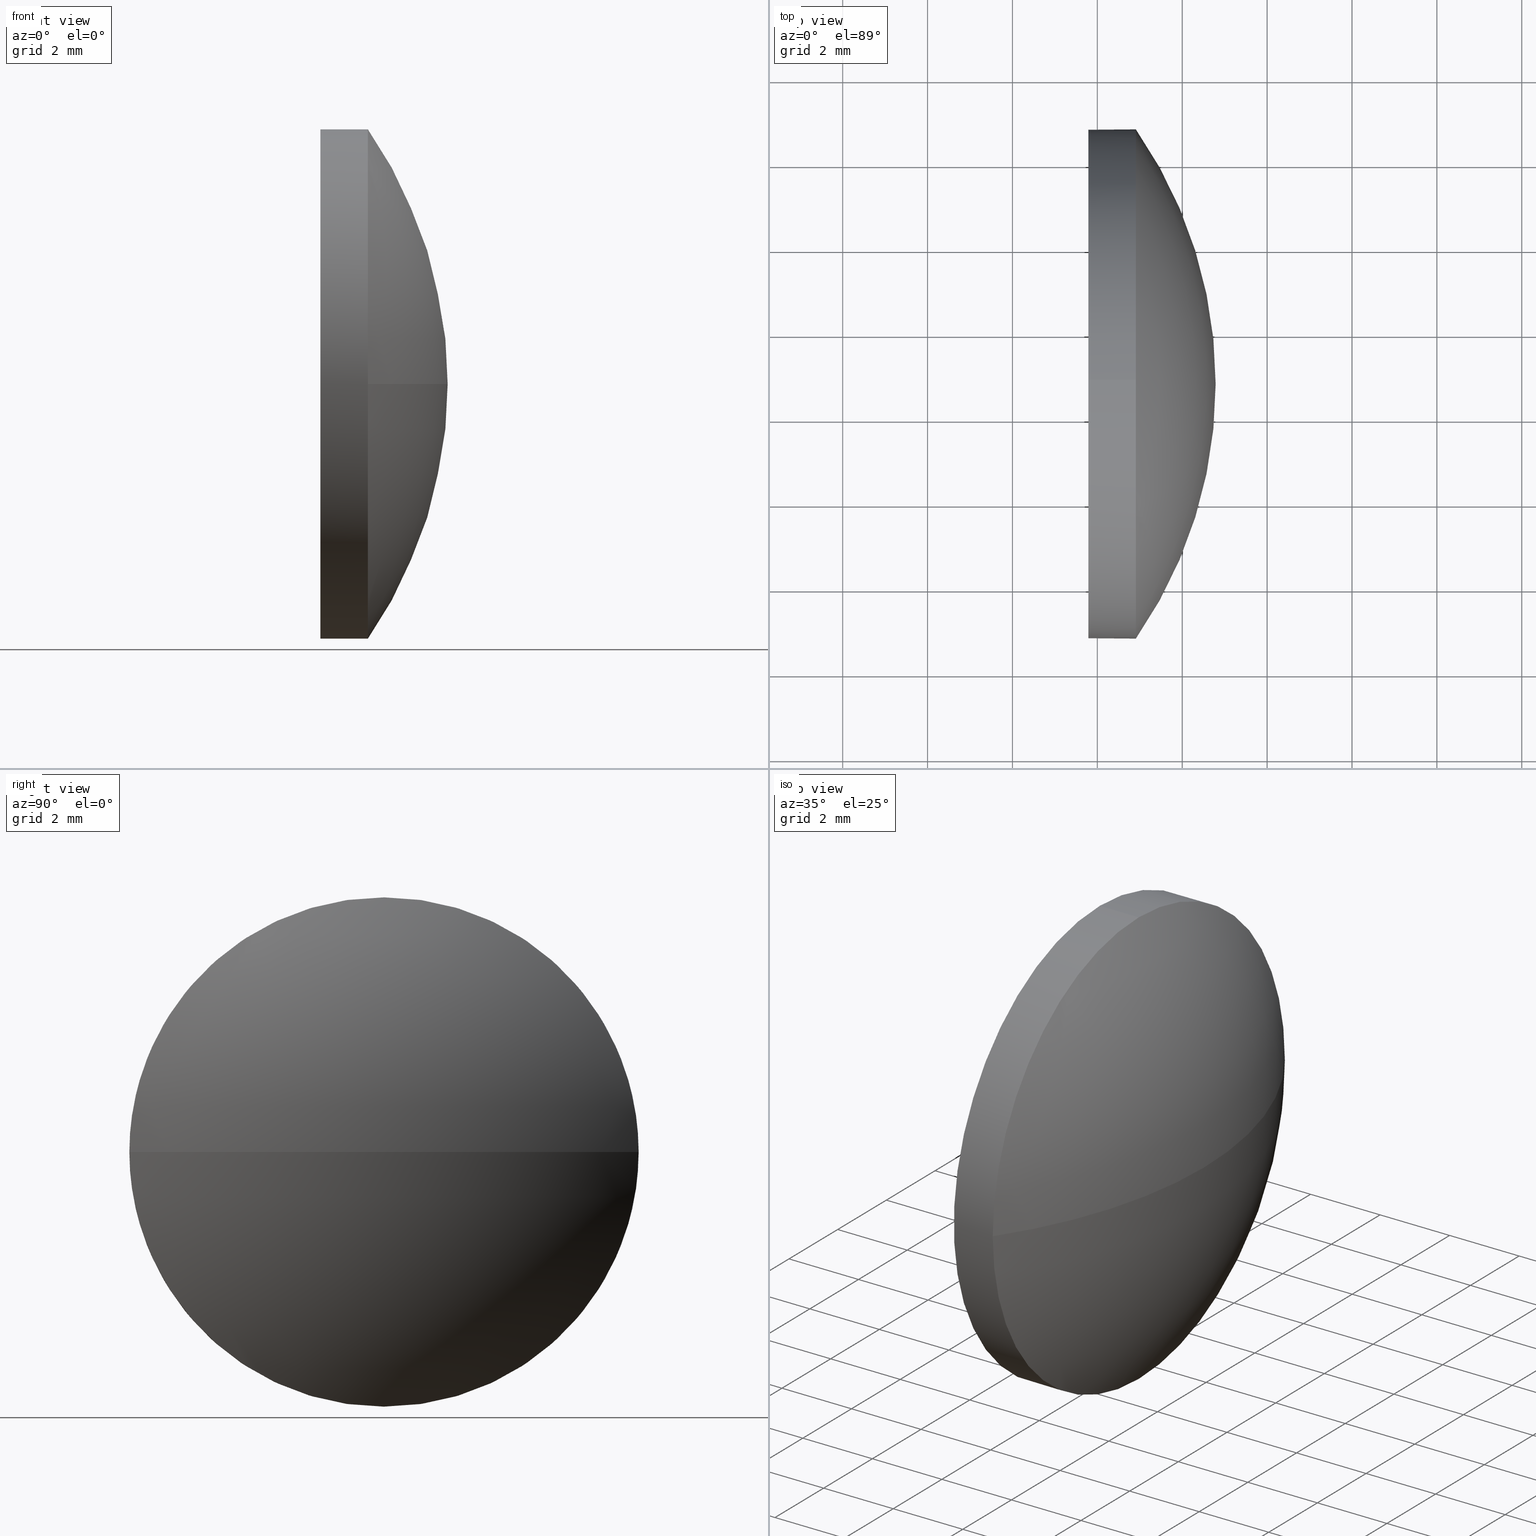
[diagram: canonical four-view strip — front | top / right | iso, engineering-drawing reading convention]
A machine part, canonical four-view strip (front | top / right | iso — engineering-drawing reading convention). The complete STEP part file that produces these views, byte-faithful:
ISO-10303-21;
HEADER;
FILE_DESCRIPTION (( 'STEP AP214' ),
    '1' );
FILE_NAME ('100109.STEP',
    '2019-05-14T01:29:24',
    ( '' ),
    ( '' ),
    'SwSTEP 2.0',
    'SolidWorks 2016',
    '' );
FILE_SCHEMA (( 'AUTOMOTIVE_DESIGN' ));
ENDSEC;

DATA;
#1 = MANIFOLD_SOLID_BREP ( '��ת1', #121 ) ;
#2 = EDGE_LOOP ( 'NONE', ( #40, #125, #24, #27 ) ) ;
#3 = ADVANCED_FACE ( 'NONE', ( #60 ), #55, .F. ) ;
#4 = CARTESIAN_POINT ( 'NONE',  ( 364.9080584487206800, 4.792432630427242700, 0.0000000000000000000 ) ) ;
#5 = CIRCLE ( 'NONE', #8, 6.000000000000000000 ) ;
#6 = ORIENTED_EDGE ( 'NONE', *, *, #114, .T. ) ;
#7 = DIRECTION ( 'NONE',  ( -1.000000000000000000, -0.0000000000000000000, -0.0000000000000000000 ) ) ;
#8 = AXIS2_PLACEMENT_3D ( 'NONE', #181, #45, #130 ) ;
#9 = FILL_AREA_STYLE_COLOUR ( '', #22 ) ;
#10 = EDGE_CURVE ( 'NONE', #52, #124, #39, .T. ) ;
#11 = LINE ( 'NONE', #163, #160 ) ;
#12 = CYLINDRICAL_SURFACE ( 'NONE', #25, 6.000000000000000000 ) ;
#13 = STYLED_ITEM ( 'NONE', ( #118 ), #51 ) ;
#14 = VERTEX_POINT ( 'NONE', #127 ) ;
#15 = AXIS2_PLACEMENT_3D ( 'NONE', #115, #170, #36 ) ;
#16 = VERTEX_POINT ( 'NONE', #32 ) ;
#17 = FILL_AREA_STYLE ('',( #97 ) ) ;
#18 = EDGE_LOOP ( 'NONE', ( #122, #167, #138, #92 ) ) ;
#19 = CARTESIAN_POINT ( 'NONE',  ( 361.9267088027018000, 4.792432630427242700, 0.0000000000000000000 ) ) ;
#20 = CARTESIAN_POINT ( 'NONE',  ( 361.9267088027018000, 4.792432630427243500, -6.000000000000000000 ) ) ;
#21 = EDGE_CURVE ( 'NONE', #50, #124, #53, .T. ) ;
#22 = COLOUR_RGB ( '',1.000000000000000000, 1.000000000000000000, 1.000000000000000000 ) ;
#23 = UNCERTAINTY_MEASURE_WITH_UNIT (LENGTH_MEASURE( 1.000000000000000100E-005 ), #89, 'distance_accuracy_value', 'NONE');
#24 = ORIENTED_EDGE ( 'NONE', *, *, #10, .F. ) ;
#25 = AXIS2_PLACEMENT_3D ( 'NONE', #119, #135, #134 ) ;
#26 = EDGE_LOOP ( 'NONE', ( #87, #142 ) ) ;
#27 = ORIENTED_EDGE ( 'NONE', *, *, #38, .F. ) ;
#28 = DIRECTION ( 'NONE',  ( -0.0000000000000000000, 0.0000000000000000000, 1.000000000000000000 ) ) ;
#29 = AXIS2_PLACEMENT_3D ( 'NONE', #19, #86, #42 ) ;
#30 = DIRECTION ( 'NONE',  ( 0.0000000000000000000, 0.0000000000000000000, 1.000000000000000000 ) ) ;
#31 = SURFACE_STYLE_USAGE ( .BOTH. , #58 ) ;
#32 = CARTESIAN_POINT ( 'NONE',  ( 363.7880584487206800, 4.792432630427242700, 6.000000000000000000 ) ) ;
#33 = AXIS2_PLACEMENT_3D ( 'NONE', #47, #180, #44 ) ;
#34 = EDGE_LOOP ( 'NONE', ( #94, #6, #176, #159, #69 ) ) ;
#35 = DIRECTION ( 'NONE',  ( -1.000000000000000000, -0.0000000000000000000, -0.0000000000000000000 ) ) ;
#36 = DIRECTION ( 'NONE',  ( 0.0000000000000000000, 1.000000000000000000, 0.0000000000000000000 ) ) ;
#37 = AXIS2_PLACEMENT_3D ( 'NONE', #155, #64, #65 ) ;
#38 = EDGE_CURVE ( 'NONE', #82, #52, #186, .T. ) ;
#39 = CIRCLE ( 'NONE', #33, 6.000000000000000000 ) ;
#40 = ORIENTED_EDGE ( 'NONE', *, *, #141, .F. ) ;
#41 = CYLINDRICAL_SURFACE ( 'NONE', #29, 6.000000000000000000 ) ;
#42 = DIRECTION ( 'NONE',  ( 0.0000000000000000000, 0.0000000000000000000, 1.000000000000000000 ) ) ;
#43 = PRESENTATION_STYLE_ASSIGNMENT (( #31 ) ) ;
#44 = DIRECTION ( 'NONE',  ( 0.0000000000000000000, 0.0000000000000000000, 1.000000000000000000 ) ) ;
#45 = DIRECTION ( 'NONE',  ( -1.000000000000000000, -0.0000000000000000000, -0.0000000000000000000 ) ) ;
#46 = SPHERICAL_SURFACE ( 'NONE', #129, 10.51446808510642600 ) ;
#47 = CARTESIAN_POINT ( 'NONE',  ( 364.9080584487206800, 4.792432630427242700, 0.0000000000000000000 ) ) ;
#48 =( NAMED_UNIT ( * ) SI_UNIT ( $, .STERADIAN. ) SOLID_ANGLE_UNIT ( ) );
#49 = ORIENTED_EDGE ( 'NONE', *, *, #98, .F. ) ;
#50 = VERTEX_POINT ( 'NONE', #179 ) ;
#51 = ADVANCED_BREP_SHAPE_REPRESENTATION ( '100109', ( #1, #62 ), #110 ) ;
#52 = VERTEX_POINT ( 'NONE', #112 ) ;
#53 = CIRCLE ( 'NONE', #137, 10.51446808510642100 ) ;
#54 = DIRECTION ( 'NONE',  ( 0.0000000000000000000, 0.0000000000000000000, -1.000000000000000000 ) ) ;
#55 = PLANE ( 'NONE',  #174 ) ;
#56 = CARTESIAN_POINT ( 'NONE',  ( 363.7880584487206800, 4.792432630427242700, 0.0000000000000000000 ) ) ;
#57 = PRODUCT ( '100109', '100109', '', ( #74 ) ) ;
#58 = SURFACE_SIDE_STYLE ('',( #175 ) ) ;
#59 = ORIENTED_EDGE ( 'NONE', *, *, #120, .T. ) ;
#60 = FACE_OUTER_BOUND ( 'NONE', #26, .T. ) ;
#61 = CARTESIAN_POINT ( 'NONE',  ( 364.9080584487206800, 4.792432630427242700, 0.0000000000000000000 ) ) ;
#62 = AXIS2_PLACEMENT_3D ( 'NONE', #166, #105, #63 ) ;
#63 = DIRECTION ( 'NONE',  ( 1.000000000000000000, 0.0000000000000000000, 0.0000000000000000000 ) ) ;
#64 = DIRECTION ( 'NONE',  ( 0.0000000000000000000, 1.224646799147353200E-016, -1.000000000000000000 ) ) ;
#65 = DIRECTION ( 'NONE',  ( 0.0000000000000000000, 1.000000000000000000, 1.224646799147353200E-016 ) ) ;
#66 = FILL_AREA_STYLE ('',( #9 ) ) ;
#67 =( GEOMETRIC_REPRESENTATION_CONTEXT ( 3 ) GLOBAL_UNCERTAINTY_ASSIGNED_CONTEXT ( ( #81 ) ) GLOBAL_UNIT_ASSIGNED_CONTEXT ( ( #150, #133, #48 ) ) REPRESENTATION_CONTEXT ( 'NONE', 'WORKASPACE' ) );
#68 = SHAPE_DEFINITION_REPRESENTATION ( #184, #51 ) ;
#69 = ORIENTED_EDGE ( 'NONE', *, *, #10, .T. ) ;
#70 = LINE ( 'NONE', #20, #145 ) ;
#71 = DIRECTION ( 'NONE',  ( 0.0000000000000000000, 0.0000000000000000000, 1.000000000000000000 ) ) ;
#72 = DIRECTION ( 'NONE',  ( -1.000000000000000000, -0.0000000000000000000, -0.0000000000000000000 ) ) ;
#73 =( NAMED_UNIT ( * ) SI_UNIT ( $, .STERADIAN. ) SOLID_ANGLE_UNIT ( ) );
#74 = PRODUCT_CONTEXT ( 'NONE', #116, 'mechanical' ) ;
#75 = CARTESIAN_POINT ( 'NONE',  ( 363.7880584487206800, 4.792432630427242700, 0.0000000000000000000 ) ) ;
#76 = DIRECTION ( 'NONE',  ( 0.0000000000000000000, 0.0000000000000000000, 1.000000000000000000 ) ) ;
#77 = PRODUCT_DEFINITION_FORMATION_WITH_SPECIFIED_SOURCE ( '�κ�', '', #57, .NOT_KNOWN. ) ;
#78 = CIRCLE ( 'NONE', #88, 6.000000000000000000 ) ;
#79 = ORIENTED_EDGE ( 'NONE', *, *, #91, .T. ) ;
#80 = CIRCLE ( 'NONE', #37, 10.51446808510642600 ) ;
#81 = UNCERTAINTY_MEASURE_WITH_UNIT (LENGTH_MEASURE( 1.000000000000000100E-005 ), #150, 'distance_accuracy_value', 'NONE');
#82 = VERTEX_POINT ( 'NONE', #162 ) ;
#83 = DIRECTION ( 'NONE',  ( 0.0000000000000000000, 0.0000000000000000000, 1.000000000000000000 ) ) ;
#84 = DIRECTION ( 'NONE',  ( -1.000000000000000000, -0.0000000000000000000, -0.0000000000000000000 ) ) ;
#85 = EDGE_CURVE ( 'NONE', #124, #14, #5, .T. ) ;
#86 = DIRECTION ( 'NONE',  ( -1.000000000000000000, -0.0000000000000000000, -0.0000000000000000000 ) ) ;
#87 = ORIENTED_EDGE ( 'NONE', *, *, #177, .T. ) ;
#88 = AXIS2_PLACEMENT_3D ( 'NONE', #100, #7, #30 ) ;
#89 =( LENGTH_UNIT ( ) NAMED_UNIT ( * ) SI_UNIT ( .MILLI., .METRE. ) );
#90 = SURFACE_SIDE_STYLE ('',( #169 ) ) ;
#91 = EDGE_CURVE ( 'NONE', #14, #82, #156, .T. ) ;
#92 = ORIENTED_EDGE ( 'NONE', *, *, #85, .F. ) ;
#93 = APPLICATION_PROTOCOL_DEFINITION ( 'draft international standard', 'automotive_design', 1998, #183 ) ;
#94 = ORIENTED_EDGE ( 'NONE', *, *, #85, .T. ) ;
#95 = MECHANICAL_DESIGN_GEOMETRIC_PRESENTATION_REPRESENTATION (  '', ( #154 ), #104 ) ;
#96 = PRESENTATION_LAYER_ASSIGNMENT (  '', '', ( #13 ) ) ;
#97 = FILL_AREA_STYLE_COLOUR ( '', #101 ) ;
#98 = EDGE_CURVE ( 'NONE', #131, #16, #78, .T. ) ;
#99 = AXIS2_PLACEMENT_3D ( 'NONE', #4, #84, #71 ) ;
#100 = CARTESIAN_POINT ( 'NONE',  ( 363.7880584487206800, 4.792432630427242700, 0.0000000000000000000 ) ) ;
#101 = COLOUR_RGB ( '',1.000000000000000000, 1.000000000000000000, 1.000000000000000000 ) ;
#102 =( LENGTH_UNIT ( ) NAMED_UNIT ( * ) SI_UNIT ( .MILLI., .METRE. ) );
#103 = CARTESIAN_POINT ( 'NONE',  ( 356.2735903636142900, 4.792432630427223100, 0.0000000000000000000 ) ) ;
#104 =( GEOMETRIC_REPRESENTATION_CONTEXT ( 3 ) GLOBAL_UNCERTAINTY_ASSIGNED_CONTEXT ( ( #139 ) ) GLOBAL_UNIT_ASSIGNED_CONTEXT ( ( #102, #144, #73 ) ) REPRESENTATION_CONTEXT ( 'NONE', 'WORKASPACE' ) );
#105 = DIRECTION ( 'NONE',  ( 0.0000000000000000000, 0.0000000000000000000, 1.000000000000000000 ) ) ;
#106 =( NAMED_UNIT ( * ) SI_UNIT ( $, .STERADIAN. ) SOLID_ANGLE_UNIT ( ) );
#107 = SURFACE_STYLE_USAGE ( .BOTH. , #90 ) ;
#108 = PRESENTATION_LAYER_ASSIGNMENT (  '', '', ( #154 ) ) ;
#109 = ORIENTED_EDGE ( 'NONE', *, *, #114, .F. ) ;
#110 =( GEOMETRIC_REPRESENTATION_CONTEXT ( 3 ) GLOBAL_UNCERTAINTY_ASSIGNED_CONTEXT ( ( #23 ) ) GLOBAL_UNIT_ASSIGNED_CONTEXT ( ( #89, #185, #106 ) ) REPRESENTATION_CONTEXT ( 'NONE', 'WORKASPACE' ) );
#111 = CIRCLE ( 'NONE', #158, 6.000000000000000000 ) ;
#112 = CARTESIAN_POINT ( 'NONE',  ( 364.9080584487206800, 4.792432630427242700, 6.000000000000000000 ) ) ;
#113 = CARTESIAN_POINT ( 'NONE',  ( 356.2735903636142900, 4.792432630427223100, 0.0000000000000000000 ) ) ;
#114 = EDGE_CURVE ( 'NONE', #14, #131, #70, .T. ) ;
#115 = CARTESIAN_POINT ( 'NONE',  ( 356.2735903636142900, 4.792432630427223100, 0.0000000000000000000 ) ) ;
#116 = APPLICATION_CONTEXT ( 'automotive_design' ) ;
#117 = FACE_OUTER_BOUND ( 'NONE', #2, .T. ) ;
#118 = PRESENTATION_STYLE_ASSIGNMENT (( #107 ) ) ;
#119 = CARTESIAN_POINT ( 'NONE',  ( 361.9267088027018000, 4.792432630427242700, 0.0000000000000000000 ) ) ;
#120 = EDGE_CURVE ( 'NONE', #52, #16, #11, .T. ) ;
#121 = CLOSED_SHELL ( 'NONE', ( #132, #165, #153, #182, #3 ) ) ;
#122 = ORIENTED_EDGE ( 'NONE', *, *, #21, .F. ) ;
#123 = AXIS2_PLACEMENT_3D ( 'NONE', #61, #72, #83 ) ;
#124 = VERTEX_POINT ( 'NONE', #146 ) ;
#125 = ORIENTED_EDGE ( 'NONE', *, *, #21, .T. ) ;
#126 = DIRECTION ( 'NONE',  ( -1.000000000000000000, -0.0000000000000000000, -0.0000000000000000000 ) ) ;
#127 = CARTESIAN_POINT ( 'NONE',  ( 364.9080584487206800, 4.792432630427243500, -6.000000000000000000 ) ) ;
#128 = DIRECTION ( 'NONE',  ( -1.000000000000000000, -0.0000000000000000000, -0.0000000000000000000 ) ) ;
#129 = AXIS2_PLACEMENT_3D ( 'NONE', #103, #152, #172 ) ;
#130 = DIRECTION ( 'NONE',  ( 0.0000000000000000000, 0.0000000000000000000, 1.000000000000000000 ) ) ;
#131 = VERTEX_POINT ( 'NONE', #147 ) ;
#132 = ADVANCED_FACE ( 'NONE', ( #149 ), #41, .T. ) ;
#133 =( NAMED_UNIT ( * ) PLANE_ANGLE_UNIT ( ) SI_UNIT ( $, .RADIAN. ) );
#134 = DIRECTION ( 'NONE',  ( 0.0000000000000000000, 0.0000000000000000000, 1.000000000000000000 ) ) ;
#135 = DIRECTION ( 'NONE',  ( -1.000000000000000000, -0.0000000000000000000, -0.0000000000000000000 ) ) ;
#136 = PRODUCT_DEFINITION_CONTEXT ( 'detailed design', #183, 'design' ) ;
#137 = AXIS2_PLACEMENT_3D ( 'NONE', #113, #28, #148 ) ;
#138 = ORIENTED_EDGE ( 'NONE', *, *, #91, .F. ) ;
#139 = UNCERTAINTY_MEASURE_WITH_UNIT (LENGTH_MEASURE( 1.000000000000000100E-005 ), #102, 'distance_accuracy_value', 'NONE');
#140 = PRODUCT_DEFINITION ( 'δ֪', '', #77, #136 ) ;
#141 = EDGE_CURVE ( 'NONE', #50, #82, #80, .T. ) ;
#142 = ORIENTED_EDGE ( 'NONE', *, *, #98, .T. ) ;
#143 = PRODUCT_RELATED_PRODUCT_CATEGORY ( 'part', '', ( #57 ) ) ;
#144 =( NAMED_UNIT ( * ) PLANE_ANGLE_UNIT ( ) SI_UNIT ( $, .RADIAN. ) );
#145 = VECTOR ( 'NONE', #126, 1000.000000000000000 ) ;
#146 = CARTESIAN_POINT ( 'NONE',  ( 364.9080584487206800, 10.79243263042723900, 0.0000000000000000000 ) ) ;
#147 = CARTESIAN_POINT ( 'NONE',  ( 363.7880584487206800, 4.792432630427243500, -6.000000000000000000 ) ) ;
#148 = DIRECTION ( 'NONE',  ( 1.000000000000000000, 0.0000000000000000000, 0.0000000000000000000 ) ) ;
#149 = FACE_OUTER_BOUND ( 'NONE', #34, .T. ) ;
#150 =( LENGTH_UNIT ( ) NAMED_UNIT ( * ) SI_UNIT ( .MILLI., .METRE. ) );
#151 = MECHANICAL_DESIGN_GEOMETRIC_PRESENTATION_REPRESENTATION (  '', ( #13 ), #67 ) ;
#152 = DIRECTION ( 'NONE',  ( -0.0000000000000000000, 0.0000000000000000000, -1.000000000000000000 ) ) ;
#153 = ADVANCED_FACE ( 'NONE', ( #117 ), #171, .T. ) ;
#154 = STYLED_ITEM ( 'NONE', ( #43 ), #1 ) ;
#155 = CARTESIAN_POINT ( 'NONE',  ( 356.2735903636142900, 4.792432630427223100, 0.0000000000000000000 ) ) ;
#156 = CIRCLE ( 'NONE', #99, 6.000000000000000000 ) ;
#157 = ORIENTED_EDGE ( 'NONE', *, *, #38, .T. ) ;
#158 = AXIS2_PLACEMENT_3D ( 'NONE', #75, #35, #76 ) ;
#159 = ORIENTED_EDGE ( 'NONE', *, *, #120, .F. ) ;
#160 = VECTOR ( 'NONE', #128, 1000.000000000000000 ) ;
#161 = FACE_OUTER_BOUND ( 'NONE', #18, .T. ) ;
#162 = CARTESIAN_POINT ( 'NONE',  ( 364.9080584487206800, -1.207567369572772700, -7.347880794884114800E-016 ) ) ;
#163 = CARTESIAN_POINT ( 'NONE',  ( 361.9267088027018000, 4.792432630427242700, 6.000000000000000000 ) ) ;
#164 = DIRECTION ( 'NONE',  ( 1.000000000000000000, 0.0000000000000000000, 0.0000000000000000000 ) ) ;
#165 = ADVANCED_FACE ( 'NONE', ( #161 ), #46, .T. ) ;
#166 = CARTESIAN_POINT ( 'NONE',  ( 0.0000000000000000000, 0.0000000000000000000, 0.0000000000000000000 ) ) ;
#167 = ORIENTED_EDGE ( 'NONE', *, *, #141, .T. ) ;
#168 = APPLICATION_PROTOCOL_DEFINITION ( 'draft international standard', 'automotive_design', 1998, #116 ) ;
#169 = SURFACE_STYLE_FILL_AREA ( #66 ) ;
#170 = DIRECTION ( 'NONE',  ( -0.0000000000000000000, 0.0000000000000000000, -1.000000000000000000 ) ) ;
#171 = SPHERICAL_SURFACE ( 'NONE', #15, 10.51446808510642600 ) ;
#172 = DIRECTION ( 'NONE',  ( 0.0000000000000000000, 1.000000000000000000, 0.0000000000000000000 ) ) ;
#173 = EDGE_LOOP ( 'NONE', ( #109, #79, #157, #59, #49 ) ) ;
#174 = AXIS2_PLACEMENT_3D ( 'NONE', #56, #164, #54 ) ;
#175 = SURFACE_STYLE_FILL_AREA ( #17 ) ;
#176 = ORIENTED_EDGE ( 'NONE', *, *, #177, .F. ) ;
#177 = EDGE_CURVE ( 'NONE', #16, #131, #111, .T. ) ;
#178 = FACE_OUTER_BOUND ( 'NONE', #173, .T. ) ;
#179 = CARTESIAN_POINT ( 'NONE',  ( 366.7880584487206800, 4.792432630427224000, 0.0000000000000000000 ) ) ;
#180 = DIRECTION ( 'NONE',  ( -1.000000000000000000, -0.0000000000000000000, -0.0000000000000000000 ) ) ;
#181 = CARTESIAN_POINT ( 'NONE',  ( 364.9080584487206800, 4.792432630427242700, 0.0000000000000000000 ) ) ;
#182 = ADVANCED_FACE ( 'NONE', ( #178 ), #12, .T. ) ;
#183 = APPLICATION_CONTEXT ( 'automotive_design' ) ;
#184 = PRODUCT_DEFINITION_SHAPE ( 'NONE', 'NONE',  #140 ) ;
#185 =( NAMED_UNIT ( * ) PLANE_ANGLE_UNIT ( ) SI_UNIT ( $, .RADIAN. ) );
#186 = CIRCLE ( 'NONE', #123, 6.000000000000000000 ) ;
ENDSEC;
END-ISO-10303-21;
